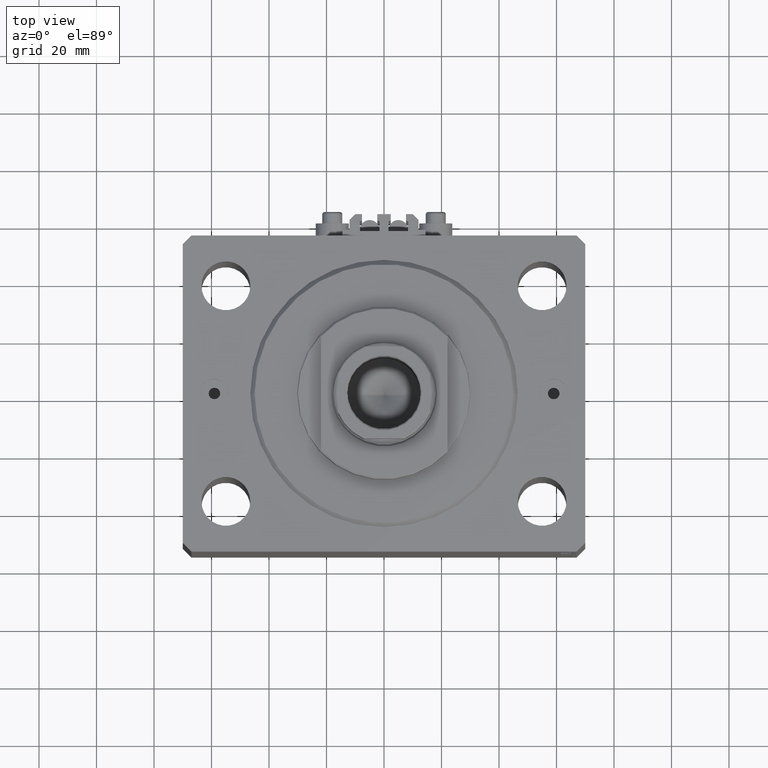
[diagram: clean part render]
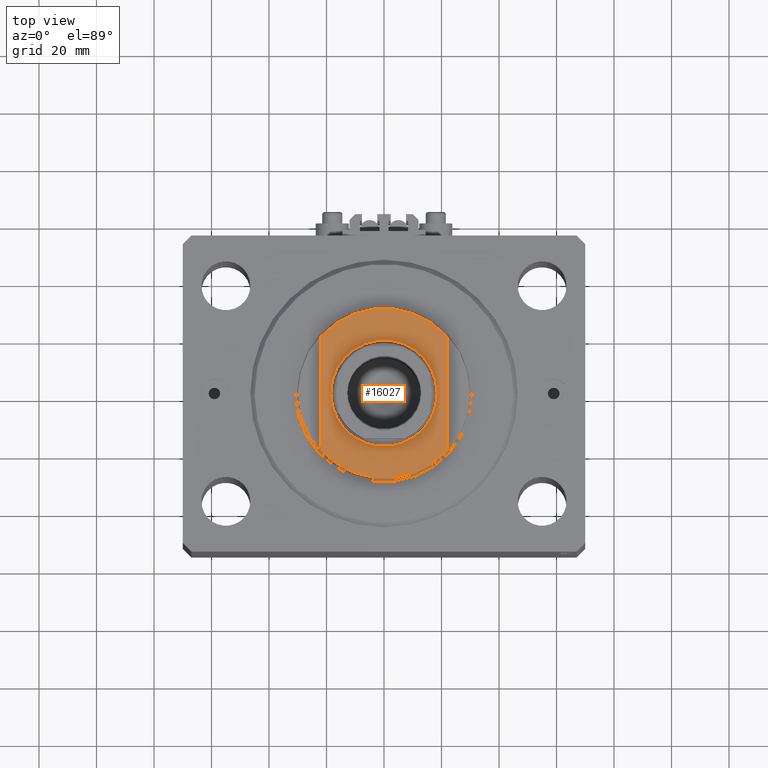
[diagram: same view with one face highlighted and labeled with its STEP entity id]
A machine part, top view. The second image highlights one B-rep face of the part: STEP entity #16027.
In plain terms, the highlighted planar face has unit normal (0, 0, 1).
Its self-contained STEP definition (entity closure, byte-faithful):
#398 = DIRECTION ( 'NONE',  ( 0.000000000000000000, 0.000000000000000000, -1.000000000000000000 ) ) ;
#695 = CARTESIAN_POINT ( 'NONE',  ( 0.000000000000000000, 0.000000000000000000, -7.000000000000000000 ) ) ;
#1372 = VERTEX_POINT ( 'NONE', #22666 ) ;
#1419 = FACE_OUTER_BOUND ( 'NONE', #17418, .T. ) ;
#1928 = DIRECTION ( 'NONE',  ( -1.000000000000000000, 0.000000000000000000, 0.000000000000000000 ) ) ;
#3140 = CARTESIAN_POINT ( 'NONE',  ( -22.00000000000000000, -19.65324400703354257, -7.000000000000000000 ) ) ;
#4287 = CARTESIAN_POINT ( 'NONE',  ( 0.000000000000000000, 0.000000000000000000, -7.000000000000000000 ) ) ;
#4344 = CARTESIAN_POINT ( 'NONE',  ( 0.000000000000000000, 0.000000000000000000, -7.000000000000000000 ) ) ;
#6199 = AXIS2_PLACEMENT_3D ( 'NONE', #20367, #35179, #1928 ) ;
#7284 = ORIENTED_EDGE ( 'NONE', *, *, #17597, .T. ) ;
#7492 = EDGE_CURVE ( 'NONE', #15483, #39821, #46458, .T. ) ;
#8964 = PLANE ( 'NONE',  #28001 ) ;
#10303 = AXIS2_PLACEMENT_3D ( 'NONE', #11741, #47931, #37705 ) ;
#11741 = CARTESIAN_POINT ( 'NONE',  ( 0.000000000000000000, 0.000000000000000000, -7.000000000000000000 ) ) ;
#11832 = EDGE_CURVE ( 'NONE', #26143, #39821, #13879, .T. ) ;
#13879 = LINE ( 'NONE', #44195, #17124 ) ;
#13986 = CARTESIAN_POINT ( 'NONE',  ( 22.00000000000000000, -39.25557285278104303, -7.000000000000000000 ) ) ;
#14917 = CIRCLE ( 'NONE', #10303, 18.50000000000003197 ) ;
#15483 = VERTEX_POINT ( 'NONE', #18724 ) ;
#15665 = VERTEX_POINT ( 'NONE', #30621 ) ;
#16027 = ADVANCED_FACE ( 'NONE', ( #38081, #1419 ), #8964, .T. ) ;
#16236 = DIRECTION ( 'NONE',  ( 0.000000000000000000, 0.000000000000000000, -1.000000000000000000 ) ) ;
#17124 = VECTOR ( 'NONE', #40557, 1000.000000000000000 ) ;
#17418 = EDGE_LOOP ( 'NONE', ( #32792, #7284, #40891, #21727 ) ) ;
#17597 = EDGE_CURVE ( 'NONE', #1372, #15483, #24202, .T. ) ;
#18368 = DIRECTION ( 'NONE',  ( -1.000000000000000000, 0.000000000000000000, 0.000000000000000000 ) ) ;
#18724 = CARTESIAN_POINT ( 'NONE',  ( 22.00000000000000000, -19.65324400703354257, -7.000000000000000000 ) ) ;
#19994 = EDGE_CURVE ( 'NONE', #15665, #39743, #14917, .T. ) ;
#20367 = CARTESIAN_POINT ( 'NONE',  ( 0.000000000000000000, 0.000000000000000000, -7.000000000000000000 ) ) ;
#21485 = EDGE_CURVE ( 'NONE', #39743, #15665, #34335, .T. ) ;
#21727 = ORIENTED_EDGE ( 'NONE', *, *, #11832, .F. ) ;
#22666 = CARTESIAN_POINT ( 'NONE',  ( 22.00000000000000000, 19.65324400703354257, -7.000000000000000000 ) ) ;
#23764 = DIRECTION ( 'NONE',  ( -1.000000000000000000, 0.000000000000000000, 0.000000000000000000 ) ) ;
#24202 = LINE ( 'NONE', #13986, #35790 ) ;
#25493 = AXIS2_PLACEMENT_3D ( 'NONE', #4287, #398, #18368 ) ;
#26143 = VERTEX_POINT ( 'NONE', #32748 ) ;
#28001 = AXIS2_PLACEMENT_3D ( 'NONE', #4344, #16236, #38568 ) ;
#29045 = EDGE_LOOP ( 'NONE', ( #42710, #34923 ) ) ;
#30621 = CARTESIAN_POINT ( 'NONE',  ( 18.50000000000003197, 2.265596578422607341E-15, -7.000000000000000000 ) ) ;
#32748 = CARTESIAN_POINT ( 'NONE',  ( -22.00000000000000000, 19.65324400703354257, -7.000000000000000000 ) ) ;
#32792 = ORIENTED_EDGE ( 'NONE', *, *, #37198, .T. ) ;
#34335 = CIRCLE ( 'NONE', #39029, 18.50000000000003197 ) ;
#34923 = ORIENTED_EDGE ( 'NONE', *, *, #19994, .T. ) ;
#35179 = DIRECTION ( 'NONE',  ( 0.000000000000000000, 0.000000000000000000, -1.000000000000000000 ) ) ;
#35790 = VECTOR ( 'NONE', #46302, 1000.000000000000000 ) ;
#37198 = EDGE_CURVE ( 'NONE', #26143, #1372, #37955, .T. ) ;
#37705 = DIRECTION ( 'NONE',  ( -1.000000000000000000, 0.000000000000000000, 0.000000000000000000 ) ) ;
#37955 = CIRCLE ( 'NONE', #6199, 29.50000000000000000 ) ;
#38081 = FACE_BOUND ( 'NONE', #29045, .T. ) ;
#38568 = DIRECTION ( 'NONE',  ( -1.000000000000000000, 0.000000000000000000, -0.000000000000000000 ) ) ;
#39029 = AXIS2_PLACEMENT_3D ( 'NONE', #695, #45617, #23764 ) ;
#39743 = VERTEX_POINT ( 'NONE', #43692 ) ;
#39821 = VERTEX_POINT ( 'NONE', #3140 ) ;
#40557 = DIRECTION ( 'NONE',  ( -0.000000000000000000, -1.000000000000000000, -0.000000000000000000 ) ) ;
#40891 = ORIENTED_EDGE ( 'NONE', *, *, #7492, .T. ) ;
#42710 = ORIENTED_EDGE ( 'NONE', *, *, #21485, .T. ) ;
#43692 = CARTESIAN_POINT ( 'NONE',  ( -18.50000000000003197, 0.000000000000000000, -7.000000000000000000 ) ) ;
#44195 = CARTESIAN_POINT ( 'NONE',  ( -22.00000000000000000, -39.25557285278104303, -7.000000000000000000 ) ) ;
#45617 = DIRECTION ( 'NONE',  ( -0.000000000000000000, -0.000000000000000000, 1.000000000000000000 ) ) ;
#46302 = DIRECTION ( 'NONE',  ( 0.000000000000000000, -1.000000000000000000, -0.000000000000000000 ) ) ;
#46458 = CIRCLE ( 'NONE', #25493, 29.50000000000000000 ) ;
#47931 = DIRECTION ( 'NONE',  ( -0.000000000000000000, -0.000000000000000000, 1.000000000000000000 ) ) ;